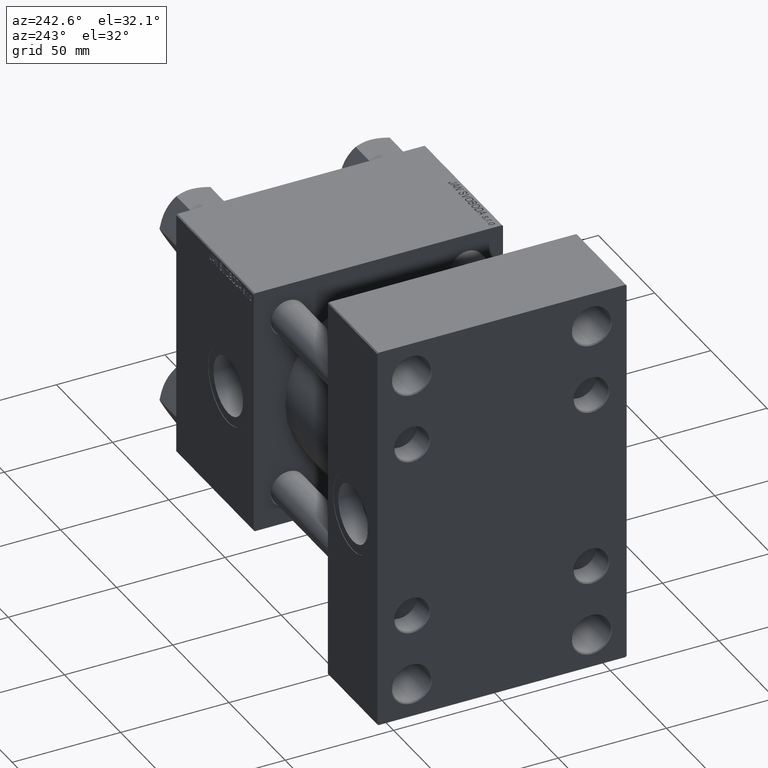
[diagram: clean part render]
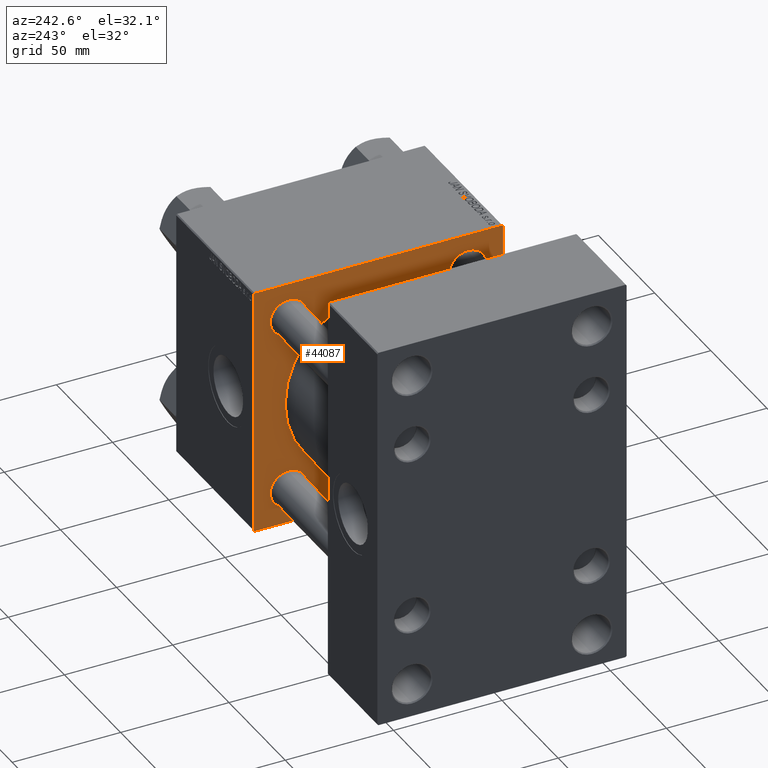
[diagram: same view with one face highlighted and labeled with its STEP entity id]
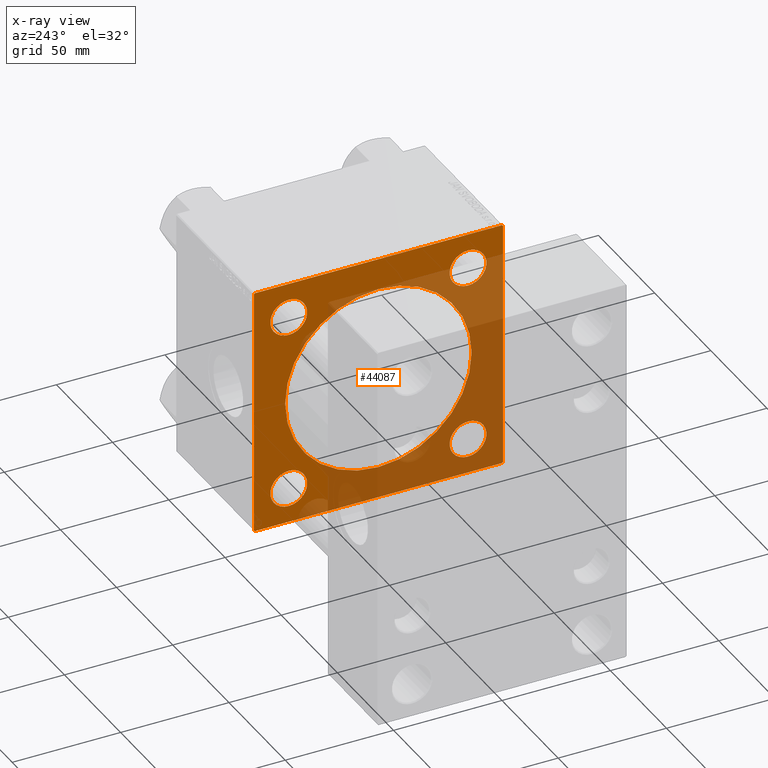
[diagram: x-ray of the same camera — body ghosted, the highlighted face saturated]
A machine part, auxiliary view. The second image highlights one B-rep face of the part: STEP entity #44087.
The next image is the same camera in x-ray: the body ghosted, the highlighted face saturated — about 48% of this face is hidden behind the body in this view.
In plain terms, the highlighted planar face has unit normal (-1, 0, 0).
Its self-contained STEP definition (entity closure, byte-faithful):
#218 = CARTESIAN_POINT ( 'NONE',  ( 110.0000000000000000, 57.50000000000000000, 57.50000000000000711 ) ) ;
#457 = VECTOR ( 'NONE', #47296, 1000.000000000000114 ) ;
#709 = VERTEX_POINT ( 'NONE', #8321 ) ;
#753 = VERTEX_POINT ( 'NONE', #25128 ) ;
#1102 = DIRECTION ( 'NONE',  ( 1.000000000000000000, -0.000000000000000000, 0.000000000000000000 ) ) ;
#1104 = CARTESIAN_POINT ( 'NONE',  ( 110.0000000000000000, -41.34999999999998721, 41.35000000000000853 ) ) ;
#1579 = CIRCLE ( 'NONE', #15438, 8.500000000000007105 ) ;
#2285 = VECTOR ( 'NONE', #3294, 1000.000000000000000 ) ;
#2577 = CARTESIAN_POINT ( 'NONE',  ( 110.0000000000000000, -41.34999999999998721, 49.85000000000002274 ) ) ;
#2760 = CIRCLE ( 'NONE', #41003, 8.500000000000007105 ) ;
#2859 = EDGE_CURVE ( 'NONE', #31296, #26973, #12776, .T. ) ;
#3074 = AXIS2_PLACEMENT_3D ( 'NONE', #42577, #42076, #15056 ) ;
#3294 = DIRECTION ( 'NONE',  ( 0.000000000000000000, -1.000000000000000000, -1.206764157201257291E-16 ) ) ;
#3527 = FACE_BOUND ( 'NONE', #24519, .T. ) ;
#3556 = LINE ( 'NONE', #218, #9230 ) ;
#4442 = DIRECTION ( 'NONE',  ( 0.000000000000000000, 0.000000000000000000, 1.000000000000000000 ) ) ;
#4790 = LINE ( 'NONE', #20820, #8510 ) ;
#4896 = CARTESIAN_POINT ( 'NONE',  ( 110.0000000000000000, 57.25000000000159872, 57.24999999999842970 ) ) ;
#5008 = EDGE_CURVE ( 'NONE', #18636, #753, #18531, .T. ) ;
#5342 = CIRCLE ( 'NONE', #39501, 8.500000000000007105 ) ;
#5701 = LINE ( 'NONE', #20480, #31225 ) ;
#5895 = DIRECTION ( 'NONE',  ( 0.000000000000000000, 0.000000000000000000, 1.000000000000000000 ) ) ;
#6181 = CARTESIAN_POINT ( 'NONE',  ( 110.0000000000000000, -57.49999999999999289, 57.00000000000004974 ) ) ;
#6237 = CARTESIAN_POINT ( 'NONE',  ( 110.0000000000000000, 41.34999999999999432, -41.35000000000000142 ) ) ;
#6324 = DIRECTION ( 'NONE',  ( 0.000000000000000000, 0.000000000000000000, 1.000000000000000000 ) ) ;
#6430 = ORIENTED_EDGE ( 'NONE', *, *, #31457, .T. ) ;
#6431 = EDGE_LOOP ( 'NONE', ( #10382, #12378 ) ) ;
#6564 = CARTESIAN_POINT ( 'NONE',  ( 110.0000000000000000, 41.34999999999999432, -32.84999999999999432 ) ) ;
#7046 = LINE ( 'NONE', #7792, #12616 ) ;
#7090 = CIRCLE ( 'NONE', #33125, 43.00000000000000000 ) ;
#7183 = VERTEX_POINT ( 'NONE', #16793 ) ;
#7359 = FACE_BOUND ( 'NONE', #34345, .T. ) ;
#7792 = CARTESIAN_POINT ( 'NONE',  ( 110.0000000000000000, -57.24999999999962341, 57.25000000000041211 ) ) ;
#8321 = CARTESIAN_POINT ( 'NONE',  ( 110.0000000000000000, 2.663896022368408223E-15, -43.00000000000000000 ) ) ;
#8510 = VECTOR ( 'NONE', #31530, 1000.000000000000000 ) ;
#8717 = EDGE_CURVE ( 'NONE', #26973, #31296, #1579, .T. ) ;
#9230 = VECTOR ( 'NONE', #42049, 1000.000000000000000 ) ;
#9300 = ORIENTED_EDGE ( 'NONE', *, *, #11621, .F. ) ;
#10382 = ORIENTED_EDGE ( 'NONE', *, *, #42634, .T. ) ;
#10438 = ORIENTED_EDGE ( 'NONE', *, *, #2859, .T. ) ;
#10637 = CARTESIAN_POINT ( 'NONE',  ( 110.0000000000000000, -2.602085213965210642E-15, 0.000000000000000000 ) ) ;
#11259 = CARTESIAN_POINT ( 'NONE',  ( 110.0000000000000000, 57.50000000000000000, 57.00000000000000711 ) ) ;
#11621 = EDGE_CURVE ( 'NONE', #44882, #43855, #12489, .T. ) ;
#11947 = AXIS2_PLACEMENT_3D ( 'NONE', #10637, #22598, #34314 ) ;
#12378 = ORIENTED_EDGE ( 'NONE', *, *, #15150, .T. ) ;
#12489 = LINE ( 'NONE', #24455, #41559 ) ;
#12616 = VECTOR ( 'NONE', #41966, 1000.000000000000000 ) ;
#12776 = CIRCLE ( 'NONE', #40469, 8.500000000000007105 ) ;
#12935 = CARTESIAN_POINT ( 'NONE',  ( 110.0000000000000000, -57.00000000000004263, 57.49999999999999289 ) ) ;
#13897 = ORIENTED_EDGE ( 'NONE', *, *, #38578, .T. ) ;
#14515 = CARTESIAN_POINT ( 'NONE',  ( 110.0000000000000000, 57.50000000000000000, 57.50000000000000711 ) ) ;
#14999 = DIRECTION ( 'NONE',  ( -0.000000000000000000, 0.000000000000000000, 1.000000000000000000 ) ) ;
#15056 = DIRECTION ( 'NONE',  ( 0.000000000000000000, 0.000000000000000000, 1.000000000000000000 ) ) ;
#15150 = EDGE_CURVE ( 'NONE', #17244, #34787, #25426, .T. ) ;
#15438 = AXIS2_PLACEMENT_3D ( 'NONE', #26005, #45644, #5895 ) ;
#16037 = CIRCLE ( 'NONE', #44537, 8.500000000000007105 ) ;
#16219 = CARTESIAN_POINT ( 'NONE',  ( 110.0000000000000000, -41.34999999999998721, 32.85000000000000142 ) ) ;
#16399 = CARTESIAN_POINT ( 'NONE',  ( 110.0000000000000000, 57.50000000000000000, -56.99999999999994316 ) ) ;
#16655 = DIRECTION ( 'NONE',  ( 0.000000000000000000, -0.7071067811865328068, 0.7071067811865622277 ) ) ;
#16657 = DIRECTION ( 'NONE',  ( 0.000000000000000000, 0.000000000000000000, 1.000000000000000000 ) ) ;
#16793 = CARTESIAN_POINT ( 'NONE',  ( 110.0000000000000000, 56.99999999999997158, -57.49999999999996447 ) ) ;
#16944 = CIRCLE ( 'NONE', #32395, 8.500000000000007105 ) ;
#16989 = VERTEX_POINT ( 'NONE', #39631 ) ;
#17244 = VERTEX_POINT ( 'NONE', #43920 ) ;
#18531 = CIRCLE ( 'NONE', #3074, 8.500000000000007105 ) ;
#18636 = VERTEX_POINT ( 'NONE', #46124 ) ;
#18883 = ORIENTED_EDGE ( 'NONE', *, *, #5008, .T. ) ;
#19775 = DIRECTION ( 'NONE',  ( 1.000000000000000000, 0.000000000000000000, 0.000000000000000000 ) ) ;
#20480 = CARTESIAN_POINT ( 'NONE',  ( 110.0000000000000000, -57.25000000000117950, -57.24999999999879918 ) ) ;
#20488 = DIRECTION ( 'NONE',  ( 1.000000000000000000, -0.000000000000000000, 0.000000000000000000 ) ) ;
#20820 = CARTESIAN_POINT ( 'NONE',  ( 110.0000000000000000, 57.50000000000000000, -57.49999999999996447 ) ) ;
#21710 = FACE_BOUND ( 'NONE', #45032, .T. ) ;
#22598 = DIRECTION ( 'NONE',  ( 1.000000000000000000, 0.000000000000000000, 0.000000000000000000 ) ) ;
#22880 = EDGE_CURVE ( 'NONE', #753, #18636, #2760, .T. ) ;
#22890 = PLANE ( 'NONE',  #43624 ) ;
#22903 = EDGE_CURVE ( 'NONE', #35877, #43855, #5701, .T. ) ;
#22941 = ORIENTED_EDGE ( 'NONE', *, *, #22880, .T. ) ;
#24113 = EDGE_CURVE ( 'NONE', #7183, #35877, #4790, .T. ) ;
#24455 = CARTESIAN_POINT ( 'NONE',  ( 110.0000000000000000, -57.49999999999999289, 57.49999999999999289 ) ) ;
#24519 = EDGE_LOOP ( 'NONE', ( #22941, #18883 ) ) ;
#25111 = EDGE_CURVE ( 'NONE', #44882, #49429, #7046, .T. ) ;
#25128 = CARTESIAN_POINT ( 'NONE',  ( 110.0000000000000000, 41.34999999999999432, 49.85000000000001563 ) ) ;
#25426 = CIRCLE ( 'NONE', #38458, 8.500000000000007105 ) ;
#25591 = DIRECTION ( 'NONE',  ( 1.000000000000000000, -0.000000000000000000, 0.000000000000000000 ) ) ;
#26005 = CARTESIAN_POINT ( 'NONE',  ( 110.0000000000000000, -41.34999999999998721, 41.35000000000000853 ) ) ;
#26973 = VERTEX_POINT ( 'NONE', #2577 ) ;
#26985 = EDGE_LOOP ( 'NONE', ( #48749, #6430 ) ) ;
#27313 = EDGE_CURVE ( 'NONE', #34406, #7183, #36041, .T. ) ;
#27882 = CARTESIAN_POINT ( 'NONE',  ( 110.0000000000000000, 41.34999999999999432, -41.35000000000000142 ) ) ;
#28067 = LINE ( 'NONE', #4896, #31339 ) ;
#28085 = ORIENTED_EDGE ( 'NONE', *, *, #34848, .T. ) ;
#28322 = DIRECTION ( 'NONE',  ( 0.000000000000000000, 0.7071067811865279218, -0.7071067811865671127 ) ) ;
#28403 = CARTESIAN_POINT ( 'NONE',  ( 110.0000000000000000, 57.24999999999996447, -57.24999999999996447 ) ) ;
#30363 = CARTESIAN_POINT ( 'NONE',  ( 110.0000000000000000, -57.00000000000001421, -57.49999999999997868 ) ) ;
#31156 = ORIENTED_EDGE ( 'NONE', *, *, #31264, .T. ) ;
#31183 = DIRECTION ( 'NONE',  ( 1.000000000000000000, -0.000000000000000000, 0.000000000000000000 ) ) ;
#31225 = VECTOR ( 'NONE', #16655, 1000.000000000000000 ) ;
#31264 = EDGE_CURVE ( 'NONE', #709, #34497, #7090, .T. ) ;
#31296 = VERTEX_POINT ( 'NONE', #16219 ) ;
#31339 = VECTOR ( 'NONE', #28322, 1000.000000000000000 ) ;
#31457 = EDGE_CURVE ( 'NONE', #16989, #42655, #16037, .T. ) ;
#31530 = DIRECTION ( 'NONE',  ( 0.000000000000000000, -1.000000000000000000, -1.206764157201257291E-16 ) ) ;
#31544 = ORIENTED_EDGE ( 'NONE', *, *, #42857, .T. ) ;
#32395 = AXIS2_PLACEMENT_3D ( 'NONE', #37417, #34327, #6324 ) ;
#32688 = DIRECTION ( 'NONE',  ( 0.000000000000000000, 0.000000000000000000, 1.000000000000000000 ) ) ;
#32743 = ORIENTED_EDGE ( 'NONE', *, *, #22903, .T. ) ;
#33001 = CARTESIAN_POINT ( 'NONE',  ( 110.0000000000000000, -41.34999999999998721, -41.35000000000000853 ) ) ;
#33125 = AXIS2_PLACEMENT_3D ( 'NONE', #47074, #19775, #35315 ) ;
#33170 = CARTESIAN_POINT ( 'NONE',  ( 110.0000000000000000, 0.000000000000000000, 0.000000000000000000 ) ) ;
#33926 = CIRCLE ( 'NONE', #11947, 43.00000000000000000 ) ;
#34314 = DIRECTION ( 'NONE',  ( 0.000000000000000000, 0.000000000000000000, -1.000000000000000000 ) ) ;
#34327 = DIRECTION ( 'NONE',  ( 1.000000000000000000, -0.000000000000000000, 0.000000000000000000 ) ) ;
#34345 = EDGE_LOOP ( 'NONE', ( #34936, #10438 ) ) ;
#34406 = VERTEX_POINT ( 'NONE', #16399 ) ;
#34497 = VERTEX_POINT ( 'NONE', #41102 ) ;
#34787 = VERTEX_POINT ( 'NONE', #6564 ) ;
#34848 = EDGE_CURVE ( 'NONE', #34497, #709, #33926, .T. ) ;
#34936 = ORIENTED_EDGE ( 'NONE', *, *, #8717, .T. ) ;
#35315 = DIRECTION ( 'NONE',  ( 0.000000000000000000, 0.000000000000000000, -1.000000000000000000 ) ) ;
#35577 = ORIENTED_EDGE ( 'NONE', *, *, #49406, .F. ) ;
#35877 = VERTEX_POINT ( 'NONE', #30363 ) ;
#36041 = LINE ( 'NONE', #28403, #457 ) ;
#36486 = CARTESIAN_POINT ( 'NONE',  ( 110.0000000000000000, -57.49999999999999289, -56.99999999999997868 ) ) ;
#36496 = ORIENTED_EDGE ( 'NONE', *, *, #24113, .T. ) ;
#37006 = FACE_BOUND ( 'NONE', #6431, .T. ) ;
#37417 = CARTESIAN_POINT ( 'NONE',  ( 110.0000000000000000, -41.34999999999998721, -41.35000000000000853 ) ) ;
#37821 = DIRECTION ( 'NONE',  ( 0.000000000000000000, 0.000000000000000000, 1.000000000000000000 ) ) ;
#38458 = AXIS2_PLACEMENT_3D ( 'NONE', #6237, #25591, #37821 ) ;
#38578 = EDGE_CURVE ( 'NONE', #44988, #34406, #3556, .T. ) ;
#39097 = CARTESIAN_POINT ( 'NONE',  ( 110.0000000000000000, 41.34999999999999432, 41.35000000000000142 ) ) ;
#39501 = AXIS2_PLACEMENT_3D ( 'NONE', #27882, #20488, #4442 ) ;
#39631 = CARTESIAN_POINT ( 'NONE',  ( 110.0000000000000000, -41.34999999999998721, -49.85000000000002274 ) ) ;
#39768 = DIRECTION ( 'NONE',  ( 0.000000000000000000, 0.000000000000000000, -1.000000000000000000 ) ) ;
#40469 = AXIS2_PLACEMENT_3D ( 'NONE', #1104, #31183, #16657 ) ;
#41003 = AXIS2_PLACEMENT_3D ( 'NONE', #39097, #1102, #32688 ) ;
#41102 = CARTESIAN_POINT ( 'NONE',  ( 110.0000000000000000, -2.602085213965210642E-15, 43.00000000000000000 ) ) ;
#41559 = VECTOR ( 'NONE', #39768, 1000.000000000000000 ) ;
#41966 = DIRECTION ( 'NONE',  ( -0.000000000000000000, 0.7071067811865524577, 0.7071067811865426878 ) ) ;
#42049 = DIRECTION ( 'NONE',  ( 0.000000000000000000, 0.000000000000000000, -1.000000000000000000 ) ) ;
#42076 = DIRECTION ( 'NONE',  ( 1.000000000000000000, -0.000000000000000000, 0.000000000000000000 ) ) ;
#42240 = ORIENTED_EDGE ( 'NONE', *, *, #25111, .T. ) ;
#42281 = FACE_OUTER_BOUND ( 'NONE', #46108, .T. ) ;
#42577 = CARTESIAN_POINT ( 'NONE',  ( 110.0000000000000000, 41.34999999999999432, 41.35000000000000142 ) ) ;
#42634 = EDGE_CURVE ( 'NONE', #34787, #17244, #5342, .T. ) ;
#42655 = VERTEX_POINT ( 'NONE', #43948 ) ;
#42857 = EDGE_CURVE ( 'NONE', #43255, #44988, #28067, .T. ) ;
#43255 = VERTEX_POINT ( 'NONE', #48915 ) ;
#43624 = AXIS2_PLACEMENT_3D ( 'NONE', #33170, #46354, #14999 ) ;
#43855 = VERTEX_POINT ( 'NONE', #36486 ) ;
#43920 = CARTESIAN_POINT ( 'NONE',  ( 110.0000000000000000, 41.34999999999999432, -49.85000000000001563 ) ) ;
#43948 = CARTESIAN_POINT ( 'NONE',  ( 110.0000000000000000, -41.34999999999998721, -32.85000000000000142 ) ) ;
#44087 = ADVANCED_FACE ( 'NONE', ( #7359, #3527, #37006, #48497, #21710, #42281 ), #22890, .T. ) ;
#44537 = AXIS2_PLACEMENT_3D ( 'NONE', #33001, #48583, #48845 ) ;
#44882 = VERTEX_POINT ( 'NONE', #6181 ) ;
#44988 = VERTEX_POINT ( 'NONE', #11259 ) ;
#45032 = EDGE_LOOP ( 'NONE', ( #28085, #31156 ) ) ;
#45644 = DIRECTION ( 'NONE',  ( 1.000000000000000000, -0.000000000000000000, 0.000000000000000000 ) ) ;
#46108 = EDGE_LOOP ( 'NONE', ( #36496, #32743, #9300, #42240, #35577, #31544, #13897, #46184 ) ) ;
#46124 = CARTESIAN_POINT ( 'NONE',  ( 110.0000000000000000, 41.34999999999999432, 32.84999999999999432 ) ) ;
#46184 = ORIENTED_EDGE ( 'NONE', *, *, #27313, .T. ) ;
#46354 = DIRECTION ( 'NONE',  ( -1.000000000000000000, 0.000000000000000000, -0.000000000000000000 ) ) ;
#47074 = CARTESIAN_POINT ( 'NONE',  ( 110.0000000000000000, -2.602085213965210642E-15, 0.000000000000000000 ) ) ;
#47296 = DIRECTION ( 'NONE',  ( -0.000000000000000000, -0.7071067811865474617, -0.7071067811865474617 ) ) ;
#48497 = FACE_BOUND ( 'NONE', #26985, .T. ) ;
#48583 = DIRECTION ( 'NONE',  ( 1.000000000000000000, -0.000000000000000000, 0.000000000000000000 ) ) ;
#48749 = ORIENTED_EDGE ( 'NONE', *, *, #49686, .T. ) ;
#48845 = DIRECTION ( 'NONE',  ( 0.000000000000000000, 0.000000000000000000, 1.000000000000000000 ) ) ;
#48915 = CARTESIAN_POINT ( 'NONE',  ( 110.0000000000000000, 57.00000000000002842, 57.50000000000000711 ) ) ;
#49406 = EDGE_CURVE ( 'NONE', #43255, #49429, #49438, .T. ) ;
#49429 = VERTEX_POINT ( 'NONE', #12935 ) ;
#49438 = LINE ( 'NONE', #14515, #2285 ) ;
#49686 = EDGE_CURVE ( 'NONE', #42655, #16989, #16944, .T. ) ;